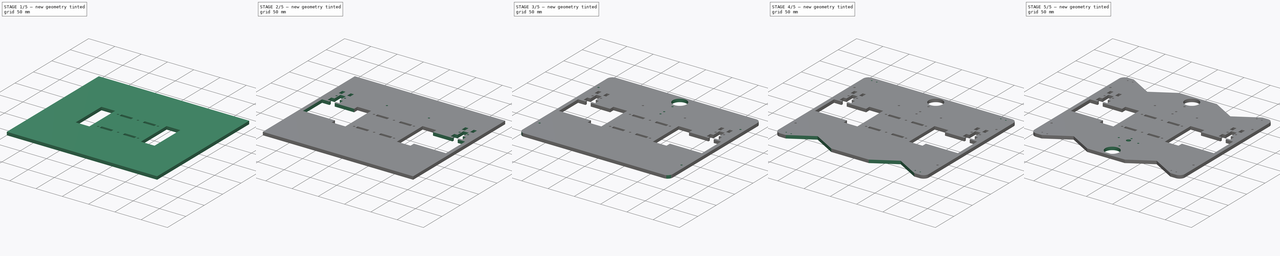
[diagram: build sequence overview — one tinted view per stage of 5, left to right]
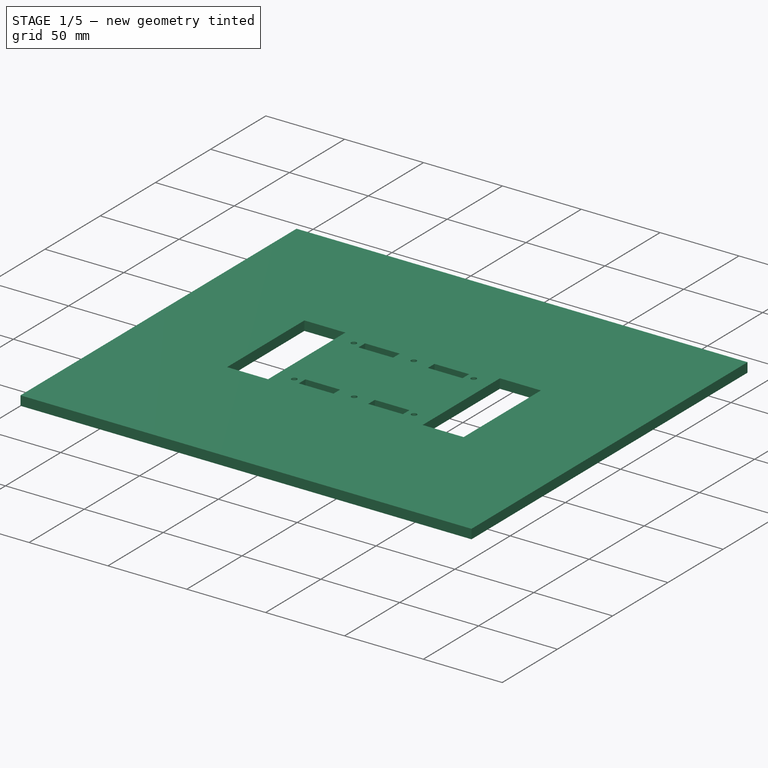
[diagram: stage 1 of 5 — iso view after this stage's code; geometry added in this stage tinted green]
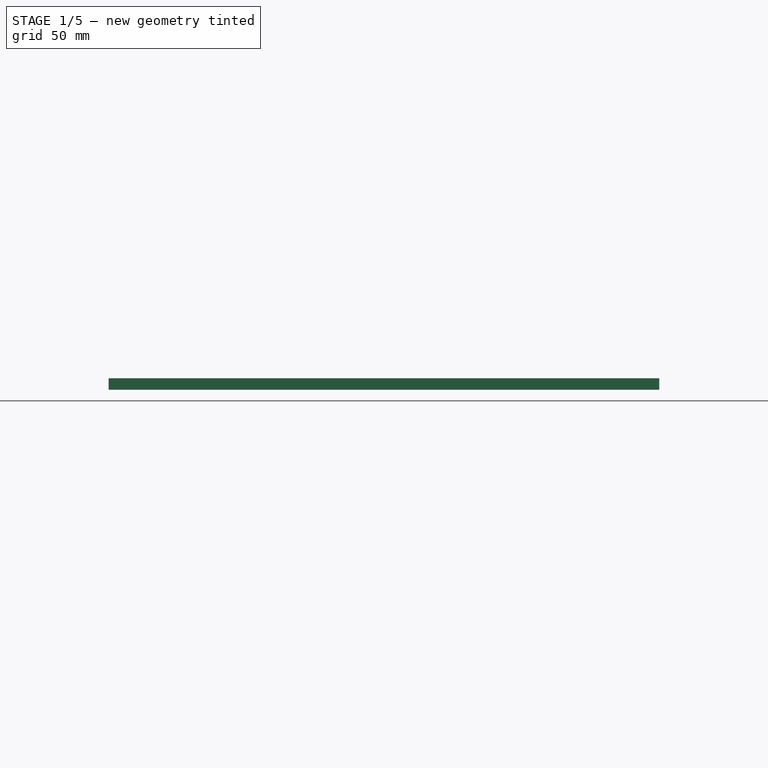
[diagram: stage 1 of 5 — front view after this stage's code; geometry added in this stage tinted green]
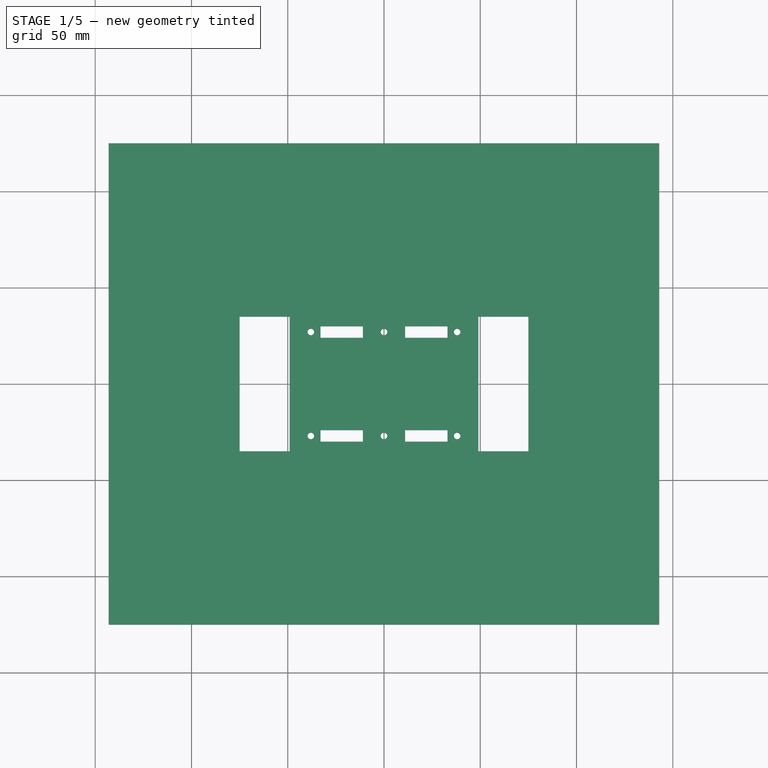
[diagram: stage 1 of 5 — top view after this stage's code; geometry added in this stage tinted green]
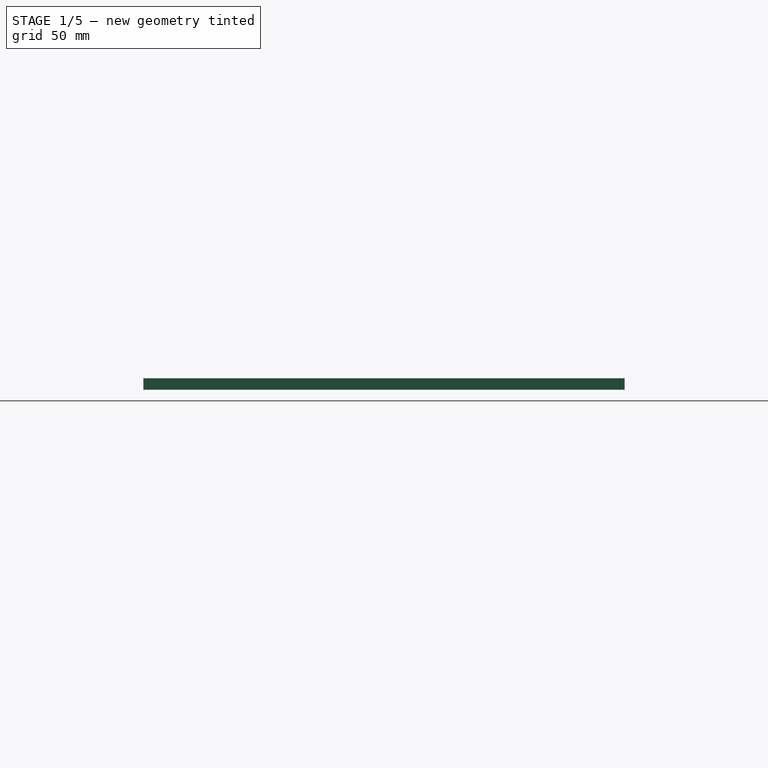
[diagram: stage 1 of 5 — right view after this stage's code; geometry added in this stage tinted green]
FCSTD DOCUMENT  (FreeCAD 0.19R24291 (Git))
Label: Chassis
License: All rights reserved
LicenseURL: http://en.wikipedia.org/wiki/All_rights_reserved
objects: Sketcher::SketchObject×10, PartDesign::Pocket×8, PartDesign::Mirrored×6, PartDesign::Pad×1, PartDesign::Hole×1, PartDesign::Body×1
note: 37 computed .brp shape members not serialized (recipe doc carries the construction recipe); baked Part::Feature solids carry a one-line shape summary decoded from their .brp

FEATURE [Sketcher::SketchObject] Sketch  label="sk1"
  FullyConstrained = true
  MapMode = 5
  Support = -> [XY_Plane]
  sketch-geometry (6):
    g0: LineSegment StartX=-143 StartY=-125 StartZ=0 EndX=143 EndY=-125 EndZ=0
    g1: LineSegment StartX=143 StartY=-125 StartZ=0 EndX=143 EndY=125 EndZ=0
    g2: LineSegment StartX=143 StartY=125 StartZ=0 EndX=-143 EndY=125 EndZ=0
    g3: LineSegment StartX=-143 StartY=125 StartZ=0 EndX=-143 EndY=-125 EndZ=0
    g4: LineSegment StartX=-143 StartY=125 StartZ=0 EndX=143 EndY=-125 EndZ=0
    g5: LineSegment StartX=143 StartY=125 StartZ=0 EndX=-143 EndY=-125 EndZ=0
  constraints (16):
    c: Coincident(g0,g1)
    c: Coincident(g1,g2)
    c: Coincident(g2,g3)
    c: Coincident(g3,g0)
    c: Horizontal(g0)
    c: Horizontal(g2)
    c: Vertical(g1)
    c: Vertical(g3)
    c: Coincident(g4,g2)
    c: Coincident(g4,g0)
    c: Coincident(g5,g1)
    c: Coincident(g5,g0)
    c: PointOnObject(g-1,g5)
    c: PointOnObject(g-1,g4)
    c: DistanceY(g3,g3) = 250
    c: DistanceX(g2,g2) = 286
FEATURE [PartDesign::Pad] Pad  label="Rectangle"
  Direction = (1,1,1)
  Length = 6
  Length2 = 100
  Profile = -> Sketch
  Type = 0
FEATURE [Sketcher::SketchObject] Sketch001  label="sk2"
  FullyConstrained = true
  MapMode = 5
  Placement = pos=(0,0,6) rot=(0,0,1;0rad)
  Support = -> [Pad]
  sketch-geometry (20):
    g0: LineSegment StartX=-33 StartY=24 StartZ=0 EndX=-11 EndY=24 EndZ=0
    g1: LineSegment StartX=-11 StartY=24 StartZ=0 EndX=-11 EndY=30 EndZ=0
    g2: LineSegment StartX=-11 StartY=30 StartZ=0 EndX=-33 EndY=30 EndZ=0
    g3: LineSegment StartX=-33 StartY=30 StartZ=0 EndX=-33 EndY=24 EndZ=0
    g4: LineSegment StartX=11 StartY=30 StartZ=0 EndX=33 EndY=30 EndZ=0
    g5: LineSegment StartX=11 StartY=24 StartZ=0 EndX=11 EndY=30 EndZ=0
    g6: LineSegment StartX=33 StartY=24 StartZ=0 EndX=11 EndY=24 EndZ=0
    g7: LineSegment StartX=33 StartY=30 StartZ=0 EndX=33 EndY=24 EndZ=0
    g8: LineSegment StartX=-49 StartY=35 StartZ=0 EndX=-75 EndY=35 EndZ=0
    g9: LineSegment StartX=-75 StartY=35 StartZ=0 EndX=-75 EndY=0 EndZ=0
    g10: LineSegment StartX=-49 StartY=35 StartZ=0 EndX=-49 EndY=0 EndZ=0
    g11: LineSegment StartX=-75 StartY=0 StartZ=0 EndX=-49 EndY=0 EndZ=0
    g12: LineSegment StartX=49 StartY=35 StartZ=0 EndX=49 EndY=-4.26e-14 EndZ=0
    g13: LineSegment StartX=49 StartY=35 StartZ=0 EndX=75 EndY=35 EndZ=0
    g14: LineSegment StartX=75 StartY=35 StartZ=0 EndX=75 EndY=-2.558e-13 EndZ=0
    g15: LineSegment StartX=75 StartY=-2.593e-13 StartZ=0 EndX=49 EndY=-4.26e-14 EndZ=0
    g16: LineSegment StartX=-38 StartY=27 StartZ=0 EndX=38 EndY=27 EndZ=0
    g17: Circle CenterX=-38 CenterY=27 CenterZ=0 NormalX=0 NormalY=0 NormalZ=1 AngleXU=0 Radius=1.7
    g18: Circle CenterX=0 CenterY=27 CenterZ=0 NormalX=0 NormalY=0 NormalZ=1 AngleXU=0 Radius=1.7
    g19: Circle CenterX=38 CenterY=27 CenterZ=0 NormalX=0 NormalY=0 NormalZ=1 AngleXU=0 Radius=1.7
  constraints (57):
    c: Coincident(g0,g1)
    c: Coincident(g1,g2)
    c: Coincident(g2,g3)
    c: Coincident(g3,g0)
    c: Horizontal(g0)
    c: Horizontal(g2)
    c: Vertical(g1)
    c: Vertical(g3)
    c: DistanceY(g1,g1) = 6
    c: DistanceX(g2,g2) = 22
    c: DistanceX(g0,g-1) = 11
    c: Coincident(g6,g5)
    c: Coincident(g5,g4)
    c: Coincident(g4,g7)
    c: Coincident(g7,g6)
    c: Horizontal(g6)
    c: Horizontal(g4)
    c: Vertical(g5)
    c: Vertical(g7)
    c: Equal(g3,g5)
    c: Equal(g4,g2)
    c: DistanceX(g-1,g4) = 11
    c: DistanceY(g-1,g5) = 24
    c: DistanceY(g-1,g0) = 24
    c: Horizontal(g8)
    c: Coincident(g9,g8)
    c: PointOnObject(g9,g-1)
    c: Vertical(g9)
    c: Coincident(g10,g8)
    c: PointOnObject(g10,g-1)
    c: Vertical(g10)
    c: Coincident(g11,g9)
    c: Coincident(g11,g10)
    c: DistanceX(g10,g-1) = 49
    c: DistanceX(g8,g8) = 26
    c: DistanceY(g9,g9) = 35
    c: Horizontal(g13)
    c: Coincident(g14,g13)
    c: Vertical(g14)
    c: Coincident(g12,g13)
    c: Vertical(g12)
    c: Coincident(g15,g14)
    c: Coincident(g15,g12)
    c: Equal(g12,g10)
    c: Equal(g13,g8)
    c: DistanceX(g-1,g12) = 49
    c: Tangent(g15,g-1)
    c: Symmetric(g0,g2,g16)
    c: DistanceX(g16,g0) = 5
    c: DistanceX(g6,g16) = 5
    c: Coincident(g17,g16)
    c: PointOnObject(g18,g16)
    c: Coincident(g19,g16)
    c: Radius(g18) = 1.7
    c: PointOnObject(g18,g-2)
    c: Equal(g19,g18)
    c: Equal(g18,g17)
FEATURE [PartDesign::Pocket] Pocket  label="Bloc_Moteurs_Half"
  BaseFeature = -> Pad
  Length = 5
  Length2 = 100
  Profile = -> Sketch001
  Type = 1
FEATURE [PartDesign::Mirrored] Mirrored  label="Bloc_Moteurs_Full"
  BaseFeature = -> Pocket
  MirrorPlane = -> Sketch001 [H_Axis]
  Originals = -> [Pocket]
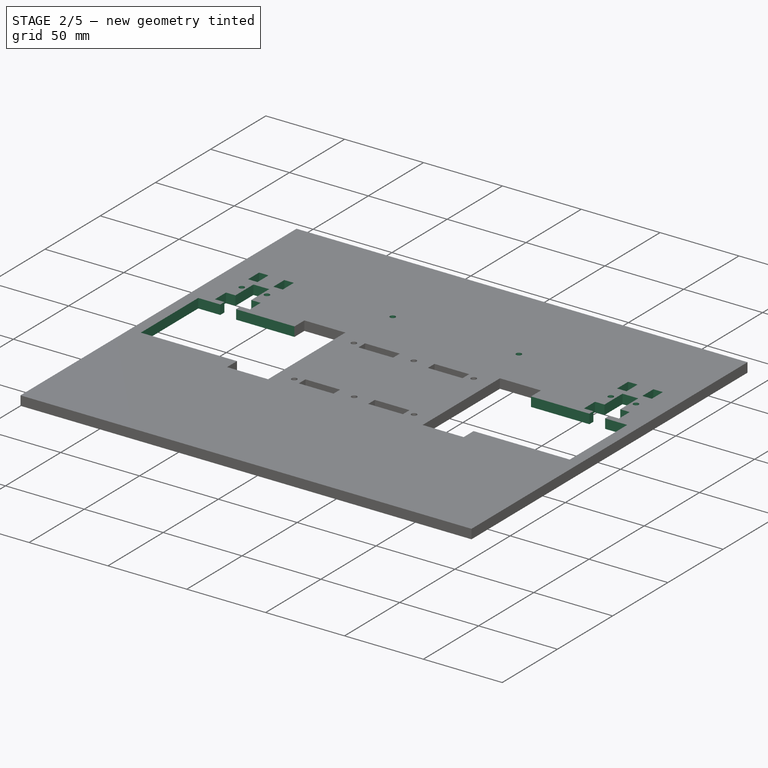
[diagram: stage 2 of 5 — iso view after this stage's code; geometry added in this stage tinted green]
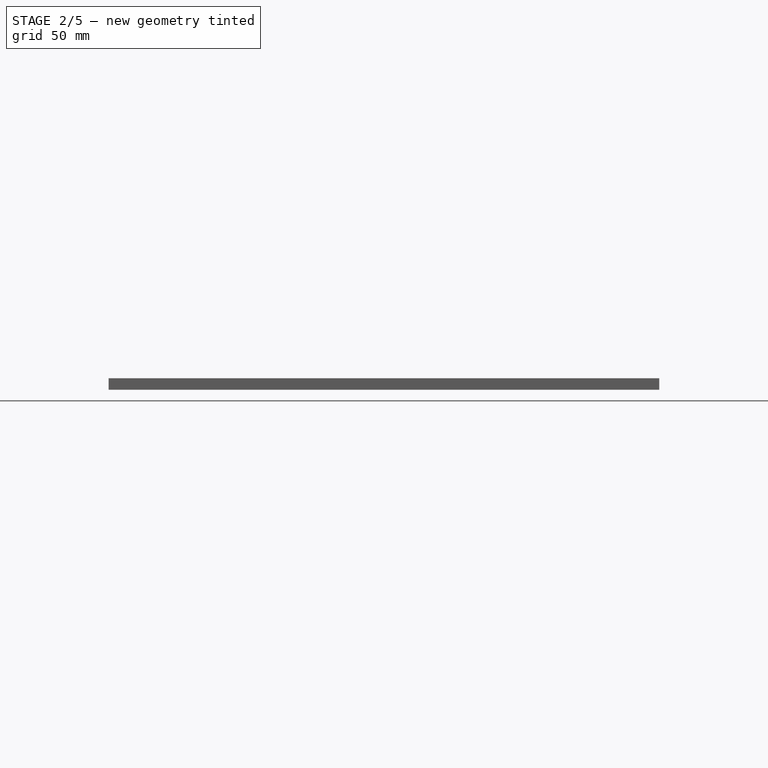
[diagram: stage 2 of 5 — front view after this stage's code; geometry added in this stage tinted green]
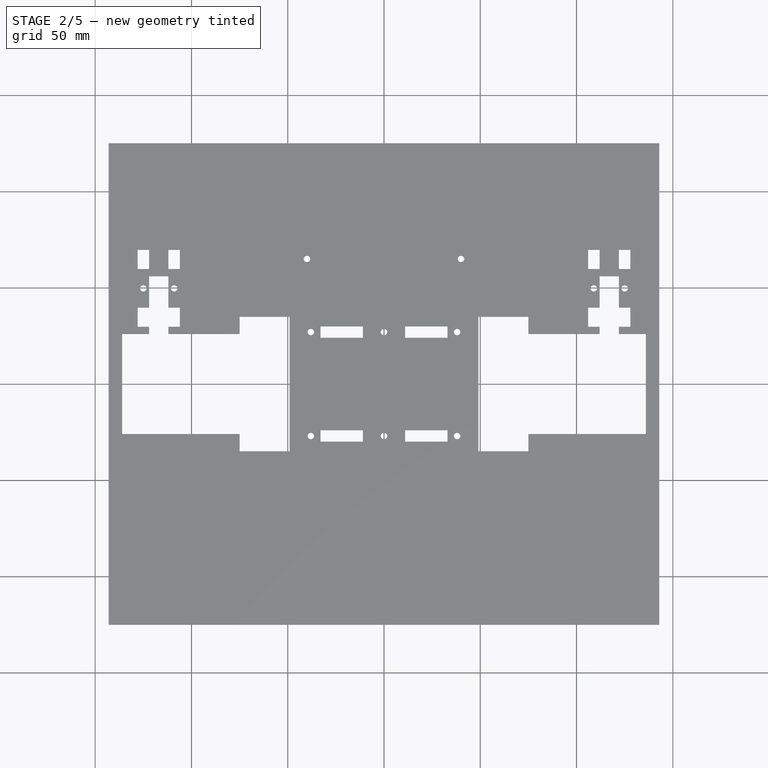
[diagram: stage 2 of 5 — top view after this stage's code; geometry added in this stage tinted green]
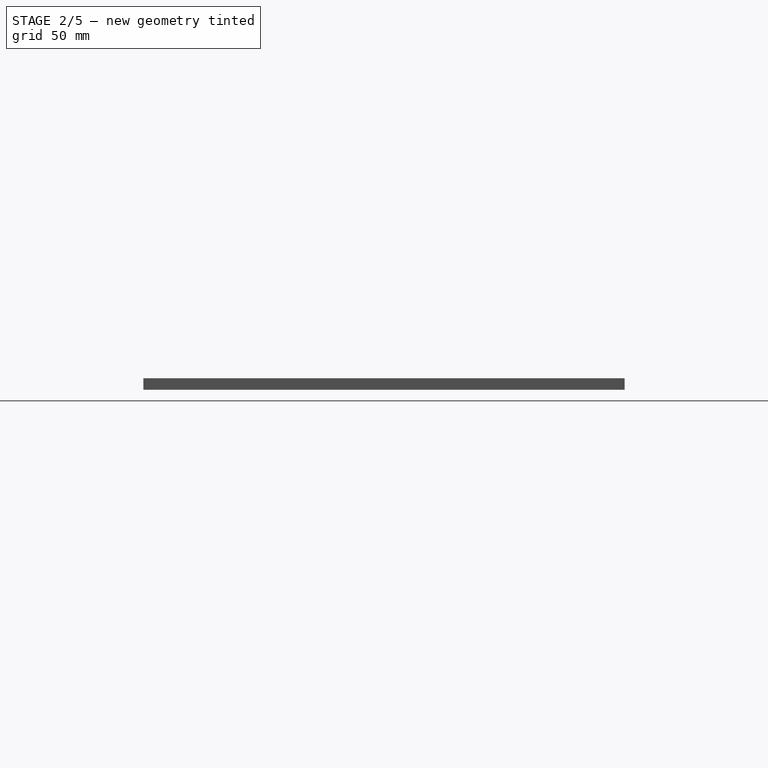
[diagram: stage 2 of 5 — right view after this stage's code; geometry added in this stage tinted green]
FEATURE [Sketcher::SketchObject] Sketch002  label="sk3"
  ExternalGeometry = -> [Mirrored]
  FullyConstrained = true
  MapMode = 5
  Placement = pos=(0,0,6) rot=(0,0,1;0rad)
  Support = -> [Mirrored]
  sketch-geometry (43):
    g0: LineSegment StartX=-136 StartY=26 StartZ=0 EndX=-136 EndY=-26 EndZ=0
    g1: LineSegment StartX=-136 StartY=-26 StartZ=0 EndX=-75 EndY=-26 EndZ=0
    g2: LineSegment StartX=-136 StartY=26 StartZ=0 EndX=-75 EndY=26 EndZ=0
    g3: LineSegment StartX=-122 StartY=26 StartZ=0 EndX=-112 EndY=26 EndZ=0
    g4: LineSegment StartX=-112 StartY=26 StartZ=0 EndX=-112 EndY=56 EndZ=0
    g5: LineSegment StartX=-112 StartY=56 StartZ=0 EndX=-122 EndY=56 EndZ=0
    g6: LineSegment StartX=-122 StartY=56 StartZ=0 EndX=-122 EndY=26 EndZ=0
    g7: LineSegment StartX=-122 StartY=29.7 StartZ=0 EndX=-128 EndY=29.7 EndZ=0
    g8: LineSegment StartX=-128 StartY=29.7 StartZ=0 EndX=-128 EndY=39.7 EndZ=0
    g9: LineSegment StartX=-128 StartY=39.7 StartZ=0 EndX=-122 EndY=39.7 EndZ=0
    g10: LineSegment StartX=-122 StartY=39.7 StartZ=0 EndX=-122 EndY=29.7 EndZ=0
    g11: LineSegment StartX=-112 StartY=39.7 StartZ=0 EndX=-106 EndY=39.7 EndZ=0
    g12: LineSegment StartX=-106 StartY=39.7 StartZ=0 EndX=-106 EndY=29.7 EndZ=0
    g13: LineSegment StartX=-106 StartY=29.7 StartZ=0 EndX=-112 EndY=29.7 EndZ=0
    g14: LineSegment StartX=-112 StartY=29.7 StartZ=0 EndX=-112 EndY=39.7 EndZ=0
    g15: LineSegment StartX=-128 StartY=59.7 StartZ=0 EndX=-122 EndY=59.7 EndZ=0
    g16: LineSegment StartX=-122 StartY=59.7 StartZ=0 EndX=-122 EndY=69.7 EndZ=0
    g17: LineSegment StartX=-122 StartY=69.7 StartZ=0 EndX=-128 EndY=69.7 EndZ=0
    g18: LineSegment StartX=-128 StartY=69.7 StartZ=0 EndX=-128 EndY=59.7 EndZ=0
    g19: LineSegment StartX=-112 StartY=59.7 StartZ=0 EndX=-106 EndY=59.7 EndZ=0
    g20: LineSegment StartX=-106 StartY=59.7 StartZ=0 EndX=-106 EndY=69.7 EndZ=0
    g21: LineSegment StartX=-106 StartY=69.7 StartZ=0 EndX=-112 EndY=69.7 EndZ=0
    g22: LineSegment StartX=-112 StartY=69.7 StartZ=0 EndX=-112 EndY=59.7 EndZ=0
    g23: Circle CenterX=-125 CenterY=49.7 CenterZ=0 NormalX=0 NormalY=0 NormalZ=1 AngleXU=0 Radius=1.7
    g24: LineSegment StartX=-128 StartY=59.7 StartZ=0 EndX=-122 EndY=39.7 EndZ=0
    g25: LineSegment StartX=-128 StartY=39.7 StartZ=0 EndX=-122 EndY=59.7 EndZ=0
    g26: Circle CenterX=-109 CenterY=49.7 CenterZ=0 NormalX=0 NormalY=0 NormalZ=1 AngleXU=0 Radius=1.7
    g27: LineSegment StartX=-112 StartY=59.7 StartZ=0 EndX=-106 EndY=39.7 EndZ=0
    g28: LineSegment StartX=-112 StartY=39.7 StartZ=0 EndX=-106 EndY=59.7 EndZ=0
    g29: LineSegment StartX=-136 StartY=26 StartZ=0 EndX=-122 EndY=26 EndZ=0
    g30: LineSegment StartX=-122 StartY=29.7 StartZ=0 EndX=-122 EndY=26 EndZ=0
    g31: LineSegment StartX=-122 StartY=29.7 StartZ=0 EndX=-128 EndY=29.7 EndZ=0
    g32: LineSegment StartX=-128 StartY=39.7 StartZ=0 EndX=-128 EndY=29.7 EndZ=0
    g33: LineSegment StartX=-128 StartY=39.7 StartZ=0 EndX=-122 EndY=39.7 EndZ=0
    g34: LineSegment StartX=-122 StartY=56 StartZ=0 EndX=-122 EndY=39.7 EndZ=0
    g35: LineSegment StartX=-122 StartY=56 StartZ=0 EndX=-112 EndY=56 EndZ=0
    g36: LineSegment StartX=-112 StartY=56 StartZ=0 EndX=-112 EndY=39.7 EndZ=0
    g37: LineSegment StartX=-112 StartY=39.7 StartZ=0 EndX=-106 EndY=39.7 EndZ=0
    g38: LineSegment StartX=-106 StartY=39.7 StartZ=0 EndX=-106 EndY=29.7 EndZ=0
    g39: LineSegment StartX=-106 StartY=29.7 StartZ=0 EndX=-112 EndY=29.7 EndZ=0
    g40: LineSegment StartX=-112 StartY=29.7 StartZ=0 EndX=-112 EndY=26 EndZ=0
    g41: LineSegment StartX=-112 StartY=26 StartZ=0 EndX=-75 EndY=26 EndZ=0
    g42: LineSegment StartX=-75 StartY=26 StartZ=0 EndX=-75 EndY=-26 EndZ=0
  constraints (111):
    c: Coincident(g2,g0)
    c: Horizontal(g2)
    c: DistanceX(g0,g1) = 61
    c: Coincident(g3,g4)
    c: Coincident(g4,g5)
    c: Coincident(g5,g6)
    c: Coincident(g6,g3)
    c: Horizontal(g3)
    c: Horizontal(g5)
    c: Vertical(g4)
    c: Vertical(g6)
    c: PointOnObject(g3,g2)
    c: DistanceX(g5,g5) = 10
    c: DistanceY(g6,g6) = 30
    c: Coincident(g7,g8)
    c: Coincident(g8,g9)
    c: Coincident(g9,g10)
    c: Coincident(g10,g7)
    c: Horizontal(g7)
    c: Horizontal(g9)
    c: Vertical(g8)
    c: Vertical(g10)
    c: PointOnObject(g7,g6)
    c: DistanceX(g9,g9) = 6
    c: Equal(g8,g5)
    c: Coincident(g11,g12)
    c: Coincident(g12,g13)
    c: Coincident(g13,g14)
    c: Coincident(g14,g11)
    c: Horizontal(g11)
    c: Horizontal(g13)
    c: Vertical(g12)
    c: Vertical(g14)
    c: PointOnObject(g11,g4)
    c: Equal(g11,g9)
    c: Horizontal(g13,g7)
    c: Horizontal(g11,g9)
    c: DistanceX(g3,g2) = 37
    c: Coincident(g15,g16)
    c: Coincident(g16,g17)
    c: Coincident(g17,g18)
    c: Coincident(g18,g15)
    c: Horizontal(g15)
    c: Horizontal(g17)
    c: Vertical(g16)
    c: Vertical(g18)
    c: Equal(g15,g9)
    c: Equal(g16,g8)
    c: Vertical(g15,g8)
    c: DistanceY(g8,g15) = 20
    c: Coincident(g19,g20)
    c: Coincident(g20,g21)
    c: Coincident(g21,g22)
    c: Coincident(g22,g19)
    c: Horizontal(g19)
    c: Horizontal(g21)
    c: Vertical(g20)
    c: Vertical(g22)
    c: Equal(g21,g17)
    c: Horizontal(g21,g16)
    c: Equal(g22,g16)
    c: Vertical(g19,g11)
    c: Radius(g23) = 1.7
    c: Coincident(g24,g15)
    c: Coincident(g24,g9)
    c: Coincident(g25,g8)
    c: Coincident(g25,g15)
    c: PointOnObject(g23,g24)
    c: PointOnObject(g23,g25)
    c: Equal(g26,g23)
    c: Coincident(g27,g19)
    c: Coincident(g27,g11)
    c: Coincident(g28,g11)
    c: Coincident(g28,g19)
    c: PointOnObject(g26,g28)
    c: PointOnObject(g26,g27)
    c: Coincident(g29,g0)
    c: Coincident(g29,g3)
    c: Coincident(g30,g7)
    c: Coincident(g30,g29)
    c: Coincident(g31,g30)
    c: Coincident(g31,g7)
    c: Coincident(g32,g8)
    c: Coincident(g32,g31)
    c: Coincident(g33,g32)
    c: Coincident(g33,g9)
    c: Coincident(g34,g5)
    c: Coincident(g34,g33)
    c: Coincident(g35,g34)
    c: Coincident(g35,g4)
    c: Coincident(g36,g35)
    c: Coincident(g36,g11)
    c: Coincident(g37,g36)
    c: Coincident(g37,g11)
    c: Coincident(g38,g37)
    c: Coincident(g38,g12)
    c: Coincident(g39,g38)
    c: Coincident(g39,g13)
    c: Coincident(g40,g39)
    c: Coincident(g40,g3)
    c: Coincident(g41,g40)
    c: Coincident(g41,g2)
    c: Coincident(g42,g41)
    c: Coincident(g42,g1)
    c: Symmetric(g0,g0,g-1)
    c: Coincident(g1,g0)
    c: PointOnObject(g1,g-5)
    c: Horizontal(g1)
    c: DistanceY(g0,g0) = 52
    c: PointOnObject(g41,g-4)
    c: DistanceY(g-5,g31) = 29.7
FEATURE [PartDesign::Pocket] Pocket001  label="Bloc_Codeurs_Half"
  BaseFeature = -> Mirrored
  Length = 5
  Length2 = 100
  Profile = -> Sketch002
  Type = 1
FEATURE [PartDesign::Mirrored] Mirrored001  label="Bloc_Codeurs_Full"
  BaseFeature = -> Pocket001
  MirrorPlane = -> Sketch002 [V_Axis]
  Originals = -> [Pocket001]
FEATURE [Sketcher::SketchObject] Sketch003  label="sk4"
  FullyConstrained = true
  MapMode = 5
  Placement = pos=(0,0,6) rot=(0,0,1;0rad)
  Support = -> [Mirrored001]
  sketch-geometry (2):
    g0: Circle CenterX=-40 CenterY=65 CenterZ=0 NormalX=0 NormalY=0 NormalZ=1 AngleXU=0 Radius=1.7
    g1: Circle CenterX=40 CenterY=65 CenterZ=0 NormalX=0 NormalY=0 NormalZ=1 AngleXU=0 Radius=1.7
  constraints (6):
    c: Radius(g0) = 1.7
    c: DistanceX(g0,g-1) = 40
    c: Radius(g1) = 1.7
    c: Horizontal(g1,g0)
    c: DistanceX(g-1,g1) = 40
    c: DistanceY(g-1,g0) = 65
FEATURE [PartDesign::Pocket] Pocket002  label="Support_Bat_Half"
  BaseFeature = -> Mirrored001
  Length = 5
  Length2 = 100
  Profile = -> Sketch003
  Type = 1
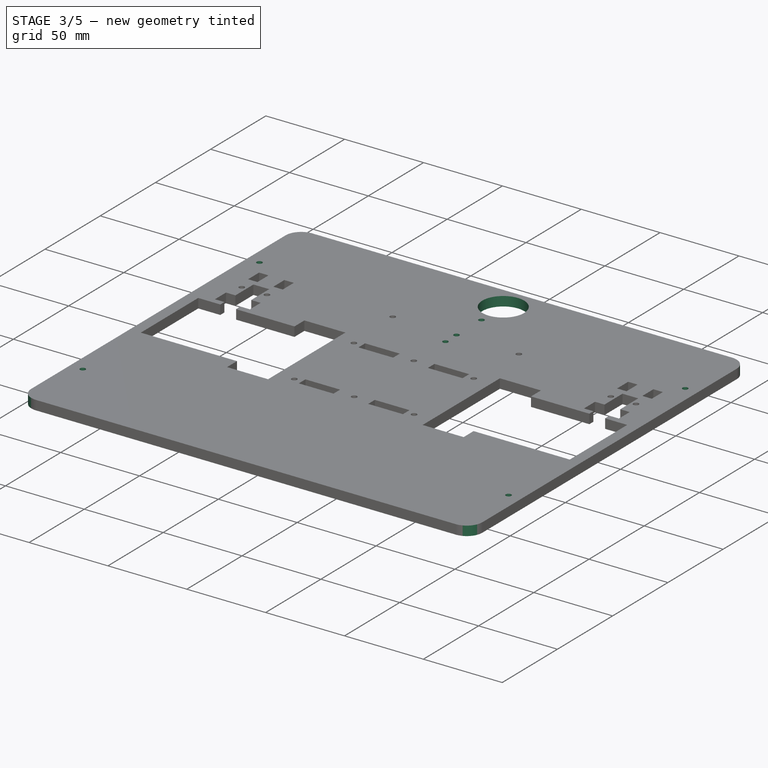
[diagram: stage 3 of 5 — iso view after this stage's code; geometry added in this stage tinted green]
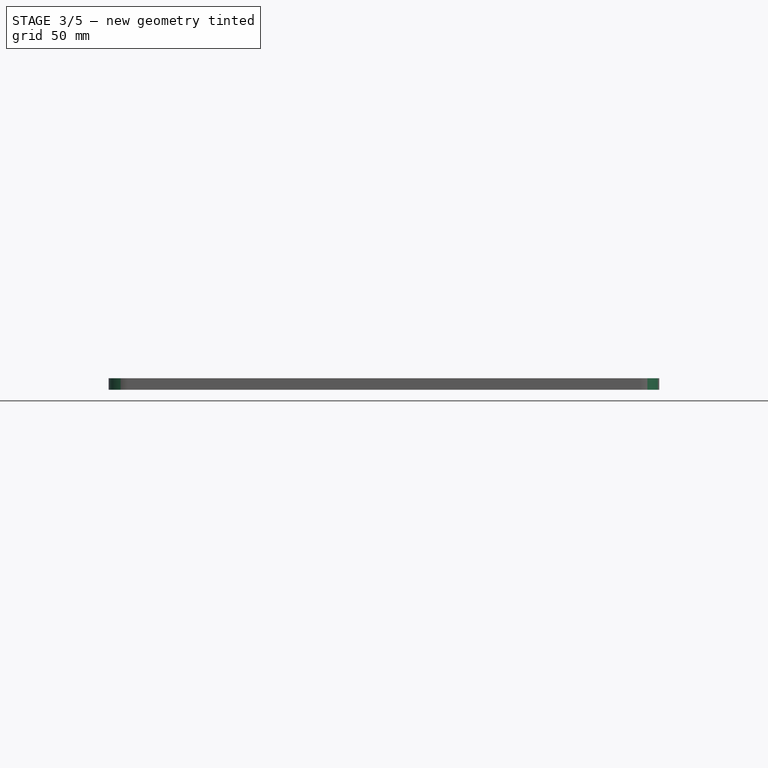
[diagram: stage 3 of 5 — front view after this stage's code; geometry added in this stage tinted green]
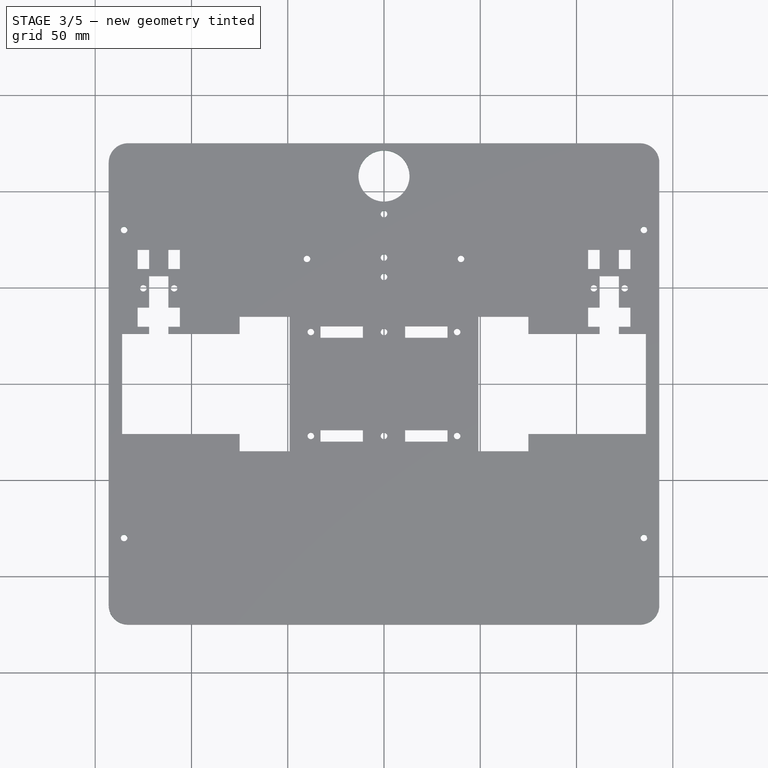
[diagram: stage 3 of 5 — top view after this stage's code; geometry added in this stage tinted green]
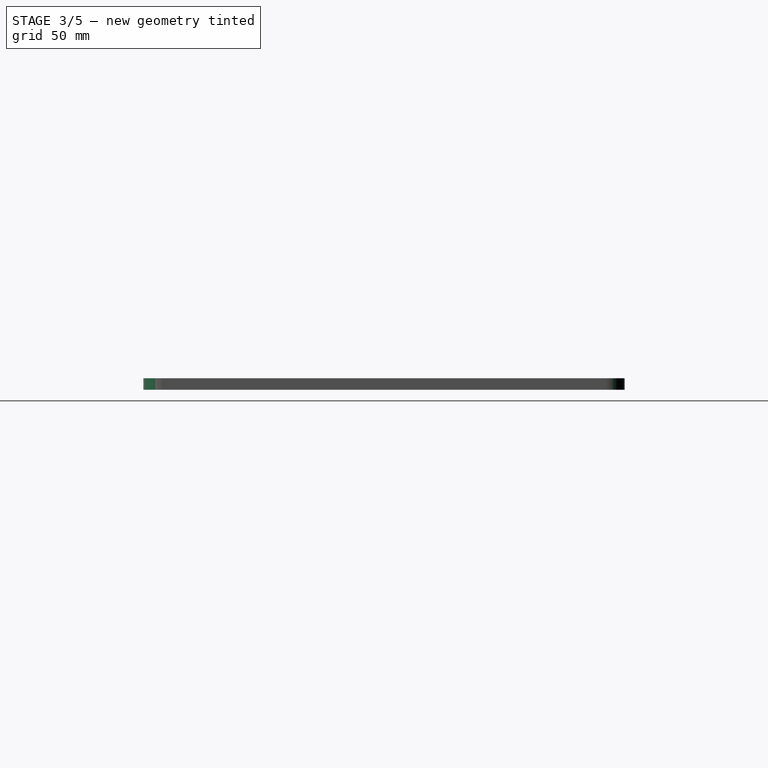
[diagram: stage 3 of 5 — right view after this stage's code; geometry added in this stage tinted green]
FEATURE [Sketcher::SketchObject] Sketch004  label="Sketch"
  FullyConstrained = true
  MapMode = 5
  Placement = pos=(0,0,6) rot=(0,0,1;0rad)
  sketch-geometry (4):
    g0: Circle CenterX=0 CenterY=108 CenterZ=0 NormalX=0 NormalY=0 NormalZ=1 AngleXU=0 Radius=13.25
    g1: Circle CenterX=0 CenterY=88.25 CenterZ=0 NormalX=0 NormalY=0 NormalZ=1 AngleXU=0 Radius=1.7
    g2: Circle CenterX=0 CenterY=55.65 CenterZ=0 NormalX=0 NormalY=0 NormalZ=1 AngleXU=0 Radius=1.7
    g3: Circle CenterX=0 CenterY=65.65 CenterZ=0 NormalX=0 NormalY=0 NormalZ=1 AngleXU=0 Radius=1.7
  constraints (12):
    c: PointOnObject(g0,g-2)
    c: Radius(g0) = 13.25
    c: PointOnObject(g1,g-2)
    c: Radius(g1) = 1.7
    c: PointOnObject(g2,g-2)
    c: PointOnObject(g3,g-2)
    c: Equal(g3,g2)
    c: Equal(g2,g1)
    c: DistanceY(g2,g3) = 10
    c: DistanceY(g-1,g0) = 108
    c: DistanceY(g1,g0) = 19.75
    c: DistanceY(g3,g1) = 22.6
FEATURE [PartDesign::Pocket] Pocket003  label="Support_Bille_Half"
  BaseFeature = -> Pocket002
  Length = 5
  Length2 = 100
  Profile = -> Sketch004
  Type = 1
FEATURE [Sketcher::SketchObject] Sketch005  label="sk6"
  FullyConstrained = false
  MapMode = 5
  Placement = pos=(0,0,6) rot=(0,0,1;0rad)
  sketch-geometry (15):
    g0: LineSegment StartX=-135 StartY=-80 StartZ=0 EndX=135 EndY=-80 EndZ=0
    g1: LineSegment StartX=135 StartY=-80 StartZ=0 EndX=135 EndY=80 EndZ=0
    g2: LineSegment StartX=135 StartY=80 StartZ=0 EndX=-135 EndY=80 EndZ=0
    g3: LineSegment StartX=-135 StartY=80 StartZ=0 EndX=-135 EndY=-80 EndZ=0
    g4: LineSegment StartX=-135 StartY=-80 StartZ=0 EndX=135 EndY=80 EndZ=0
    g5: LineSegment StartX=-135 StartY=80 StartZ=0 EndX=135 EndY=-80 EndZ=0
    g6: Circle CenterX=135 CenterY=80 CenterZ=0 NormalX=0 NormalY=0 NormalZ=1 AngleXU=0 Radius=1.7
    g7: Circle CenterX=-135 CenterY=80 CenterZ=0 NormalX=0 NormalY=0 NormalZ=1 AngleXU=0 Radius=1.7
    g8: Circle CenterX=-135 CenterY=-80 CenterZ=0 NormalX=0 NormalY=0 NormalZ=1 AngleXU=0 Radius=1.7
    g9: Circle CenterX=135 CenterY=-80 CenterZ=0 NormalX=0 NormalY=0 NormalZ=1 AngleXU=0 Radius=1.7
    g10: LineSegment StartX=-130 StartY=-85 StartZ=0 EndX=-140 EndY=-85 EndZ=0
    g11: LineSegment StartX=-140 StartY=-85 StartZ=0 EndX=-140 EndY=-75 EndZ=0
    g12: LineSegment StartX=-140 StartY=-75 StartZ=0 EndX=-130 EndY=-75 EndZ=0
    g13: LineSegment StartX=-130 StartY=-75 StartZ=0 EndX=-130 EndY=-85 EndZ=0
    g14: LineSegment StartX=-140 StartY=-75 StartZ=0 EndX=-130 EndY=-85 EndZ=0
  constraints (36):
    c: Coincident(g0,g1)
    c: Coincident(g1,g2)
    c: Coincident(g2,g3)
    c: Coincident(g3,g0)
    c: Horizontal(g0)
    c: Horizontal(g2)
    c: Vertical(g1)
    c: Vertical(g3)
    c: Coincident(g4,g0)
    c: Coincident(g4,g1)
    c: Coincident(g5,g2)
    c: Coincident(g5,g0)
    c: PointOnObject(g-1,g5)
    c: PointOnObject(g-1,g4)
    c: DistanceY(g1,g1) = 160
    c: Coincident(g6,g1)
    c: Coincident(g7,g2)
    c: Coincident(g8,g0)
    c: Coincident(g9,g0)
    c: Radius(g6) = 1.7
    c: Equal(g6,g7)
    c: Equal(g7,g8)
    c: Equal(g8,g9)
    c: Coincident(g10,g11)
    c: Coincident(g11,g12)
    c: Coincident(g12,g13)
    c: Coincident(g13,g10)
    c: Horizontal(g10)
    c: Horizontal(g12)
    c: Vertical(g11)
    c: Vertical(g13)
    c: Coincident(g14,g11)
    c: Coincident(g14,g10)
    c: DistanceX(g10,g10) = 10
    c: Equal(g10,g13)
    c: Symmetric(g11,g10,g8)
FEATURE [PartDesign::Pocket] Pocket004  label="Fixation_Structure"
  BaseFeature = -> Pocket003
  Length = 5
  Length2 = 100
  Profile = -> Sketch005
  Type = 1
FEATURE [Sketcher::SketchObject] Sketch006  label="sk7"
  ExternalGeometry = -> [Pocket004]
  FullyConstrained = true
  MapMode = 5
  Placement = pos=(0,0,6) rot=(0,0,1;0rad)
  Support = -> [Pocket004]
  sketch-geometry (10):
    g0: LineSegment StartX=-143 StartY=-115 StartZ=0 EndX=-143 EndY=-125 EndZ=0
    g1: LineSegment StartX=-143 StartY=-125 StartZ=0 EndX=-133 EndY=-125 EndZ=0
    g2: LineSegment StartX=143 StartY=-115 StartZ=0 EndX=143 EndY=-125 EndZ=0
    g3: LineSegment StartX=143 StartY=-125 StartZ=0 EndX=133 EndY=-125 EndZ=0
    g4: LineSegment StartX=-143 StartY=-115 StartZ=0 EndX=-133 EndY=-115 EndZ=0
    g5: LineSegment StartX=-133 StartY=-115 StartZ=0 EndX=-133 EndY=-125 EndZ=0
    g6: ArcOfCircle CenterX=-133 CenterY=-115 CenterZ=0 NormalX=0 NormalY=0 NormalZ=1 AngleXU=0 Radius=10 StartAngle=3.14159 EndAngle=4.71239
    g7: ArcOfCircle CenterX=133 CenterY=-115 CenterZ=0 NormalX=0 NormalY=0 NormalZ=1 AngleXU=0 Radius=10 StartAngle=4.71239 EndAngle=6.28319
    g8: LineSegment StartX=133 StartY=-115 StartZ=0 EndX=133 EndY=-125 EndZ=0
    g9: LineSegment StartX=133 StartY=-115 StartZ=0 EndX=143 EndY=-115 EndZ=0
  constraints (26):
    c: PointOnObject(g0,g-3)
    c: PointOnObject(g1,g-4)
    c: Coincident(g0,g-4)
    c: Coincident(g1,g0)
    c: Equal(g1,g0)
    c: Coincident(g3,g2)
    c: Equal(g3,g2)
    c: Equal(g3,g1)
    c: PointOnObject(g2,g-5)
    c: Coincident(g2,g-5)
    c: PointOnObject(g3,g-4)
    c: DistanceX(g0,g1) = 10
    c: Horizontal(g4)
    c: Coincident(g5,g4)
    c: Coincident(g4,g0)
    c: Coincident(g5,g1)
    c: Coincident(g6,g4)
    c: Coincident(g6,g0)
    c: Coincident(g6,g1)
    c: Coincident(g7,g2)
    c: Coincident(g7,g3)
    c: Coincident(g8,g7)
    c: Coincident(g8,g3)
    c: Vertical(g8)
    c: Coincident(g9,g7)
    c: Coincident(g9,g2)
FEATURE [PartDesign::Pocket] Pocket005  label="Coins_Arrondis"
  BaseFeature = -> Pocket004
  Length = 5
  Length2 = 100
  Profile = -> Sketch006
  Type = 1
FEATURE [PartDesign::Mirrored] Mirrored004  label="Coins_Arrondis_Full"
  BaseFeature = -> Pocket005
  MirrorPlane = -> Sketch006 [H_Axis]
  Originals = -> [Pocket005]
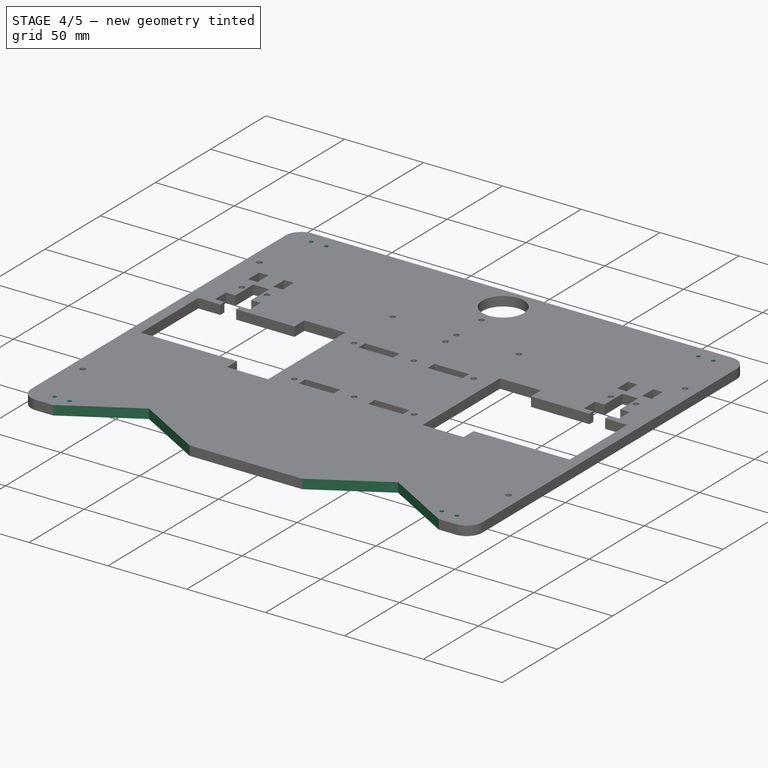
[diagram: stage 4 of 5 — iso view after this stage's code; geometry added in this stage tinted green]
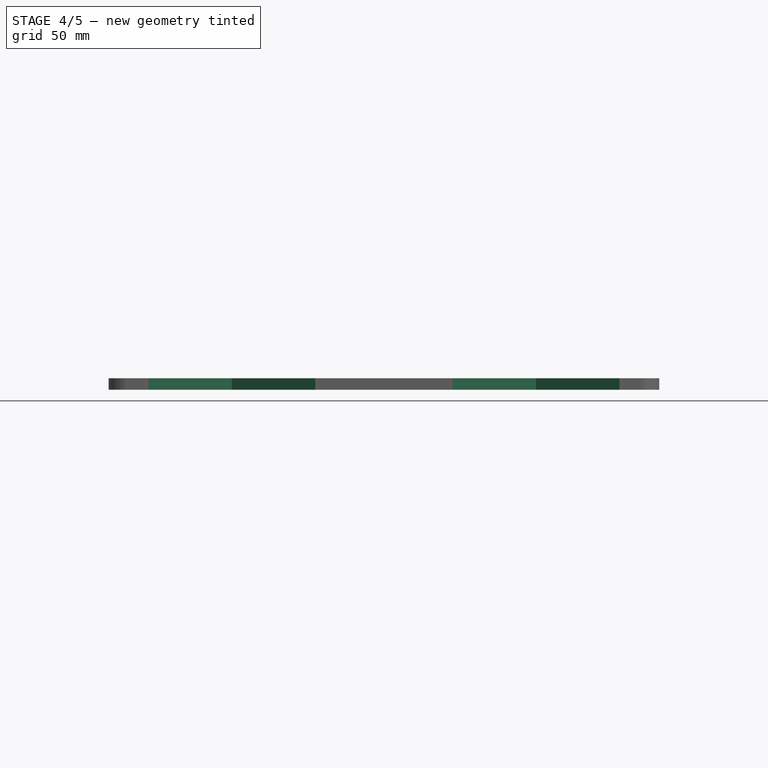
[diagram: stage 4 of 5 — front view after this stage's code; geometry added in this stage tinted green]
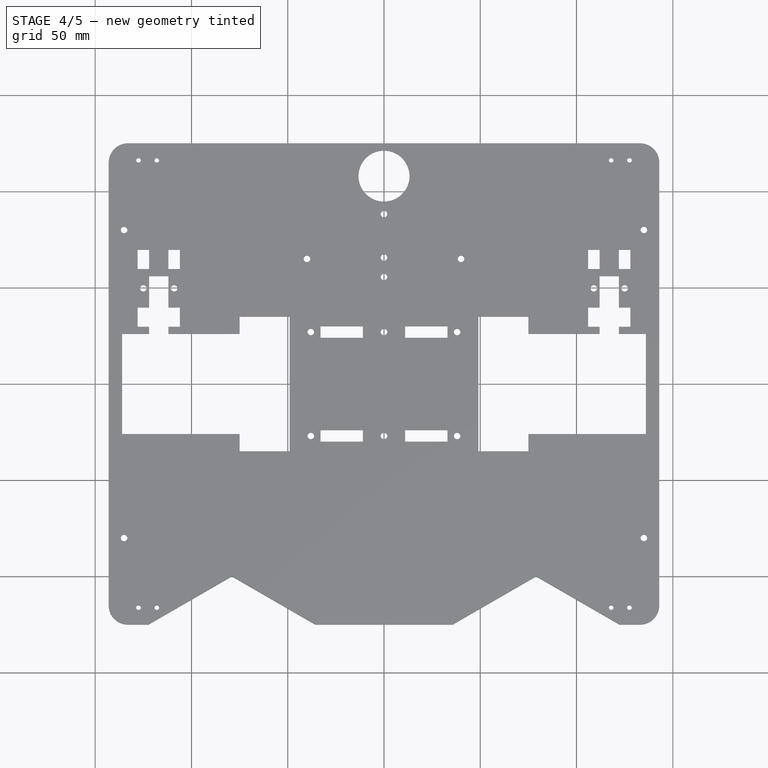
[diagram: stage 4 of 5 — top view after this stage's code; geometry added in this stage tinted green]
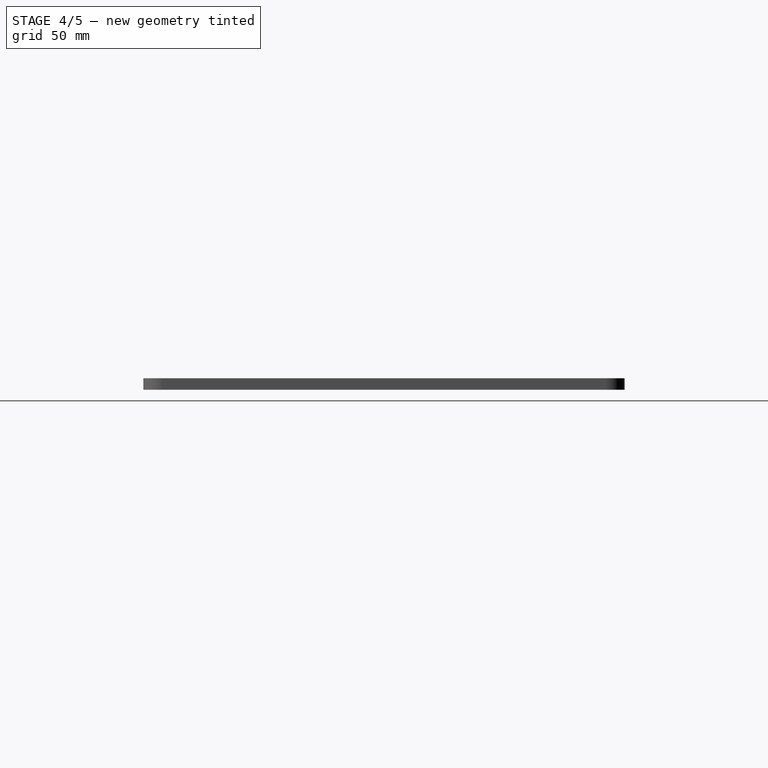
[diagram: stage 4 of 5 — right view after this stage's code; geometry added in this stage tinted green]
FEATURE [Sketcher::SketchObject] Sketch007  label="sk8"
  ExternalGeometry = -> [Mirrored004]
  FullyConstrained = true
  MapMode = 5
  Placement = pos=(0,0,6) rot=(0,0,1;0rad)
  Support = -> [Mirrored004]
  sketch-geometry (8):
    g0: Circle CenterX=-127.5 CenterY=-116.2 CenterZ=0 NormalX=0 NormalY=0 NormalZ=1 AngleXU=0 Radius=1
    g1: Circle CenterX=-118 CenterY=-116.2 CenterZ=0 NormalX=0 NormalY=0 NormalZ=1 AngleXU=0 Radius=1
    g2: GeomPoint X=-128.5 Y=-116.2 Z=0
    g3: GeomPoint X=-119 Y=-116.2 Z=0
    g4: Circle CenterX=127.5 CenterY=-116.2 CenterZ=0 NormalX=0 NormalY=0 NormalZ=1 AngleXU=0 Radius=1
    g5: Circle CenterX=118 CenterY=-116.2 CenterZ=0 NormalX=0 NormalY=0 NormalZ=1 AngleXU=0 Radius=1
    g6: LineSegment StartX=127.5 StartY=-116.2 StartZ=0 EndX=118 EndY=-116.2 EndZ=0
    g7: LineSegment StartX=-127.5 StartY=-116.2 StartZ=0 EndX=-118 EndY=-116.2 EndZ=0
  constraints (21):
    c: Radius(g0) = 1
    c: Equal(g0,g1)
    c: Horizontal(g0,g1)
    c: DistanceX(g0,g1) = 9.5
    c: DistanceY(g-3,g0) = 8.8
    c: PointOnObject(g2,g0)
    c: PointOnObject(g3,g1)
    c: Horizontal(g2,g0)
    c: Horizontal(g3,g1)
    c: Radius(g5) = 1
    c: Equal(g5,g4)
    c: Horizontal(g4,g5)
    c: Horizontal(g1,g4)
    c: DistanceY(g-4) = -115
    c: Coincident(g6,g4)
    c: Coincident(g6,g5)
    c: Coincident(g7,g0)
    c: Coincident(g7,g1)
    c: Equal(g6,g7)
    c: DistanceX(g-3,g1) = 15
    c: DistanceX(g5,g-3) = 15
FEATURE [PartDesign::Hole] Hole  label="Fixation_Microrupteurs_Half"
  BaseFeature = -> Mirrored004
  Depth = 25
  DepthType = 1
  Diameter = 2.42
  DrillForDepth = false
  DrillPoint = 1
  DrillPointAngle = 118
  HoleCutCountersinkAngle = 90
  HoleCutCustomValues = false
  HoleCutDepth = 0
  HoleCutDiameter = 6.1
  HoleCutType = 0
  ModelActualThread = false
  Profile = -> Sketch007
  Tapered = false
  TaperedAngle = 90
  ThreadAngle = 0
  ThreadClass = 0
  ThreadCutOffInner = 0
  ThreadCutOffOuter = 0
  ThreadDirection = 0
  ThreadFit = 0
  ThreadPitch = 0
  ThreadSize = 7
  ThreadType = 1
  Threaded = false
FEATURE [PartDesign::Mirrored] Mirrored005  label="Fixation_Microrupteurs_Full"
  BaseFeature = -> Hole
  MirrorPlane = -> Sketch007 [H_Axis]
  Originals = -> [Hole]
FEATURE [Sketcher::SketchObject] Sketch008  label="sk9"
  ExternalGeometry = -> [Mirrored005]
  FullyConstrained = true
  MapMode = 5
  Placement = pos=(0,0,6) rot=(0,0,1;0rad)
  Support = -> [Mirrored005]
  sketch-geometry (16):
    g0: LineSegment StartX=-4 StartY=-143.301 StartZ=0 EndX=-79 EndY=-100 EndZ=0
    g1: LineSegment StartX=-79 StartY=-100 StartZ=0 EndX=-154 EndY=-143.301 EndZ=0
    g2: LineSegment StartX=-154 StartY=-143.301 StartZ=0 EndX=-154 EndY=-229.904 EndZ=0
    g3: LineSegment StartX=-154 StartY=-229.904 StartZ=0 EndX=-79 EndY=-273.205 EndZ=0
    g4: LineSegment StartX=-79 StartY=-273.205 StartZ=0 EndX=-4 EndY=-229.904 EndZ=0
    g5: LineSegment StartX=-4 StartY=-229.904 StartZ=0 EndX=-4 EndY=-143.301 EndZ=0
    g6: Circle CenterX=-79 CenterY=-186.603 CenterZ=0 NormalX=0 NormalY=0 NormalZ=1 AngleXU=0 Radius=86.6025
    g7: LineSegment StartX=-154 StartY=-143.301 StartZ=0 EndX=-4 EndY=-143.301 EndZ=0
    g8: LineSegment StartX=4 StartY=-143.301 StartZ=0 EndX=4 EndY=-229.904 EndZ=0
    g9: LineSegment StartX=4 StartY=-229.904 StartZ=0 EndX=79 EndY=-273.205 EndZ=0
    g10: LineSegment StartX=79 StartY=-273.205 StartZ=0 EndX=154 EndY=-229.904 EndZ=0
    g11: LineSegment StartX=154 StartY=-229.904 StartZ=0 EndX=154 EndY=-143.301 EndZ=0
    g12: LineSegment StartX=154 StartY=-143.301 StartZ=0 EndX=79 EndY=-100 EndZ=0
    g13: LineSegment StartX=79 StartY=-100 StartZ=0 EndX=4 EndY=-143.301 EndZ=0
    g14: Circle CenterX=79 CenterY=-186.603 CenterZ=0 NormalX=0 NormalY=0 NormalZ=1 AngleXU=0 Radius=86.6025
    g15: LineSegment StartX=4 StartY=-143.301 StartZ=0 EndX=154 EndY=-143.301 EndZ=0
  constraints (38):
    c: Coincident(g0,g1)
    c: Coincident(g1,g2)
    c: Coincident(g2,g3)
    c: Coincident(g3,g4)
    c: Coincident(g4,g5)
    c: Coincident(g5,g0)
    c: Equal(g0, g1-g5) x5
    c: PointOnObject(g0,g6)
    c: PointOnObject(g1,g6)
    c: PointOnObject(g2,g6)
    c: PointOnObject(g3,g6)
    c: PointOnObject(g4,g6)
    c: PointOnObject(g5,g6)
    c: Coincident(g7,g1)
    c: Coincident(g7,g0)
    c: Horizontal(g7)
    c: DistanceX(g1,g0) = 150
    c: DistanceX(g-3,g0) = 54
    c: DistanceY(g-3,g0) = 25
    c: Coincident(g8,g9)
    c: Coincident(g9,g10)
    c: Coincident(g10,g11)
    c: Coincident(g11,g12)
    c: Coincident(g12,g13)
    c: Coincident(g13,g8)
    c: Equal(g8, g9-g13) x5
    c: PointOnObject(g8,g14)
    c: PointOnObject(g9,g14)
    c: PointOnObject(g10,g14)
    c: PointOnObject(g11,g14)
    c: PointOnObject(g12,g14)
    c: PointOnObject(g13,g14)
    c: Coincident(g15,g8)
    c: Coincident(g15,g11)
    c: Equal(g15,g7)
    c: Parallel(g15,g-3)
    c: Horizontal(g12,g0)
    c: DistanceX(g12,g-3) = 54
FEATURE [PartDesign::Pocket] Pocket006  label="Trous_Echantillons_Half"
  BaseFeature = -> Mirrored005
  Length = 5
  Length2 = 100
  Profile = -> Sketch008
  Type = 1
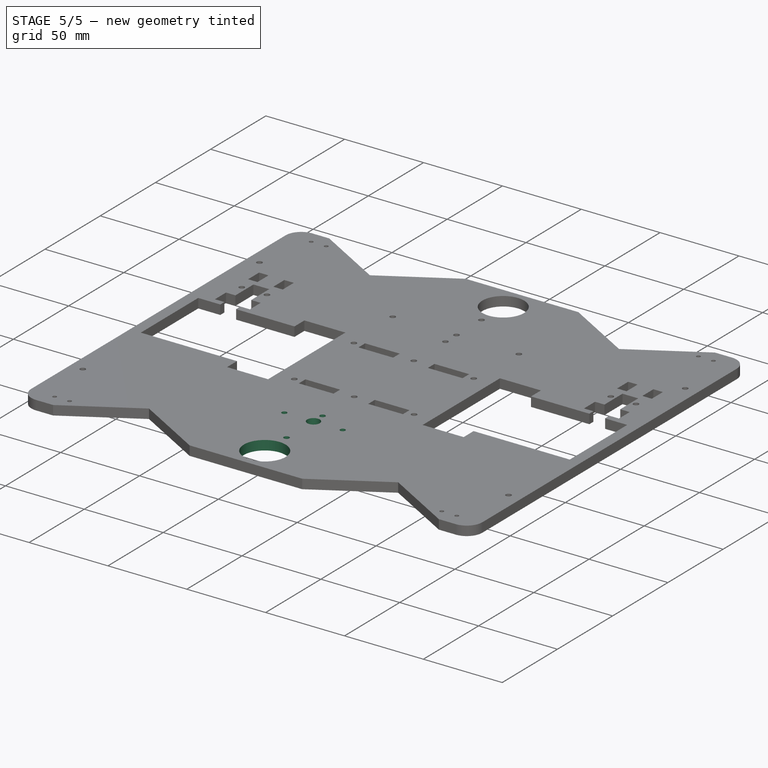
[diagram: stage 5 of 5 — iso view after this stage's code; geometry added in this stage tinted green]
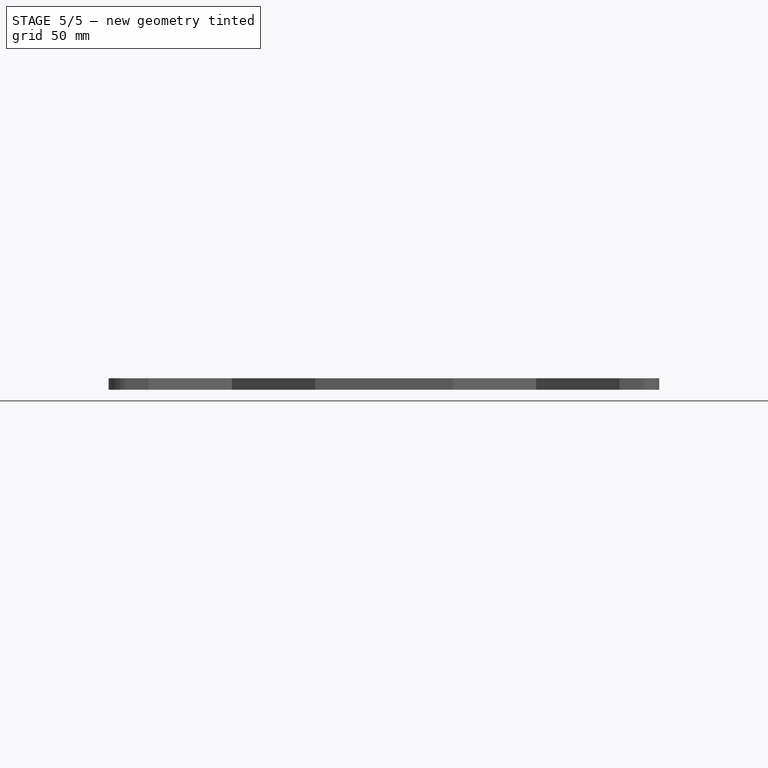
[diagram: stage 5 of 5 — front view after this stage's code; geometry added in this stage tinted green]
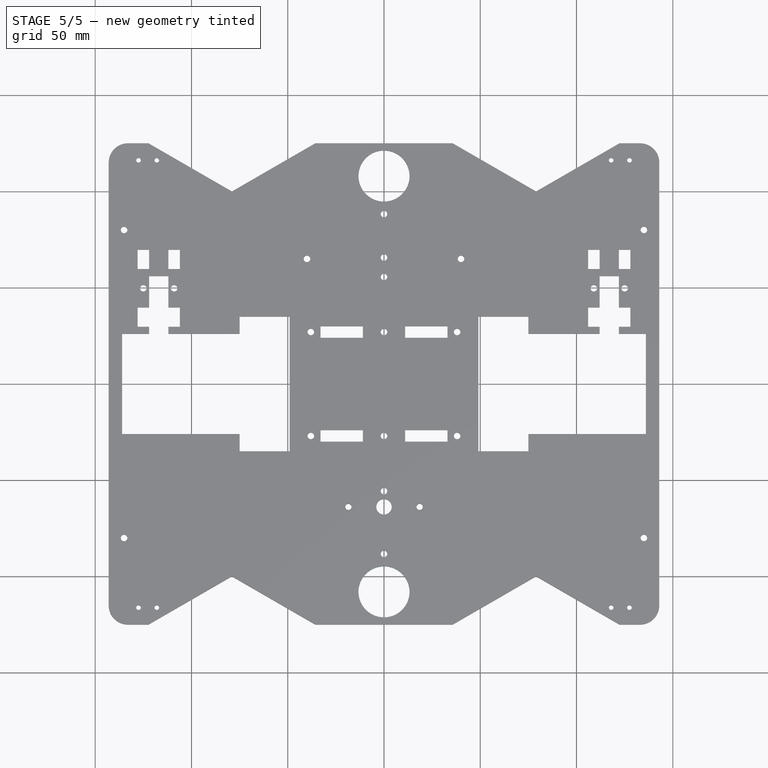
[diagram: stage 5 of 5 — top view after this stage's code; geometry added in this stage tinted green]
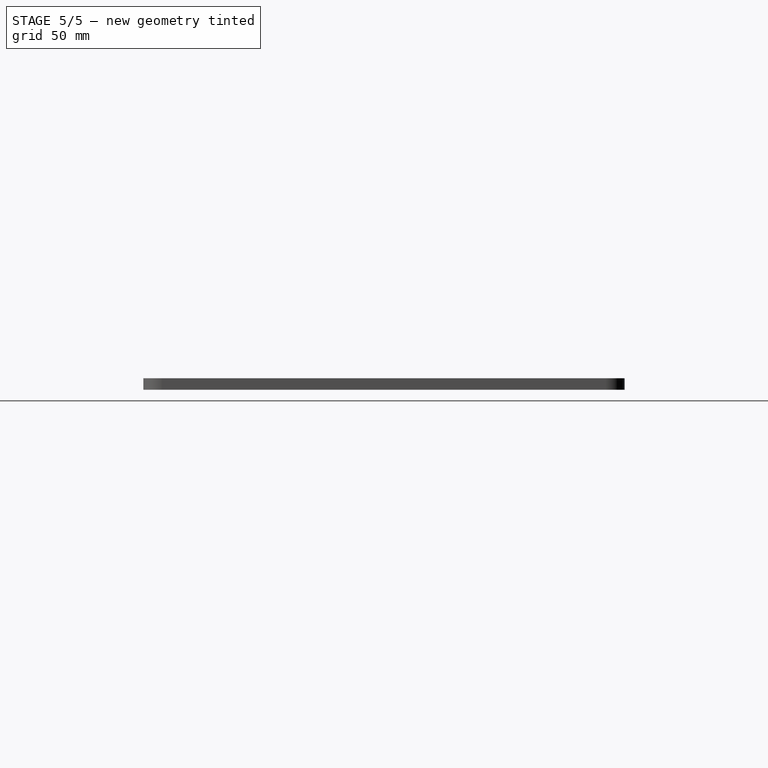
[diagram: stage 5 of 5 — right view after this stage's code; geometry added in this stage tinted green]
FEATURE [PartDesign::Mirrored] Mirrored006  label="Trous_Echantillons_Full"
  BaseFeature = -> Pocket006
  MirrorPlane = -> Sketch008 [H_Axis]
  Originals = -> [Pocket006]
FEATURE [Sketcher::SketchObject] Sketch009
  ExternalGeometry = -> [Mirrored006]
  FullyConstrained = true
  MapMode = 5
  Placement = pos=(0,0,6) rot=(0,0,1;0rad)
  Support = -> [Mirrored006]
  sketch-geometry (4):
    g0: GeomPoint X=0 Y=-63.85 Z=0
    g1: Circle CenterX=0 CenterY=-63.85 CenterZ=0 NormalX=0 NormalY=0 NormalZ=1 AngleXU=0 Radius=4
    g2: Circle CenterX=-18.5 CenterY=-63.85 CenterZ=0 NormalX=0 NormalY=0 NormalZ=1 AngleXU=0 Radius=1.6
    g3: Circle CenterX=18.5 CenterY=-63.85 CenterZ=0 NormalX=0 NormalY=0 NormalZ=1 AngleXU=0 Radius=1.6
  constraints (9):
    c: PointOnObject(g0,g-2)
    c: DistanceY(g-3,g0) = 61.15
    c: Coincident(g1,g0)
    c: Radius(g1) = 4
    c: Horizontal(g2,g1)
    c: DistanceX(g2,g3) = 37
    c: Radius(g2) = 1.6
    c: Equal(g2,g3)
    c: Symmetric(g2,g3,g1)
FEATURE [PartDesign::Pocket] Pocket007
  BaseFeature = -> Mirrored006
  Length = 5
  Length2 = 100
  Profile = -> Sketch009
  Type = 1
FEATURE [PartDesign::Mirrored] Mirrored007  label="Support_Bille_Full"
  BaseFeature = -> Pocket007
  MirrorPlane = -> Sketch004 [H_Axis]
  Originals = -> [Pocket003]
FEATURE [PartDesign::Body] Body
  Group = -> [Sketch,Pad,Sketch001,Pocket,Mirrored,Sketch002,Pocket001,Mirrored001,Sketch003,Pocket002,Sketch004,Pocket003,Sketch005,Pocket004,Sketch006,Pocket005,Mirrored004,Sketch007,Hole,Mirrored005,Sketch008,Pocket006,Mirrored006,Sketch009,Pocket007,Mirrored007]
  Origin = -> Origin
  Tip = -> Mirrored007
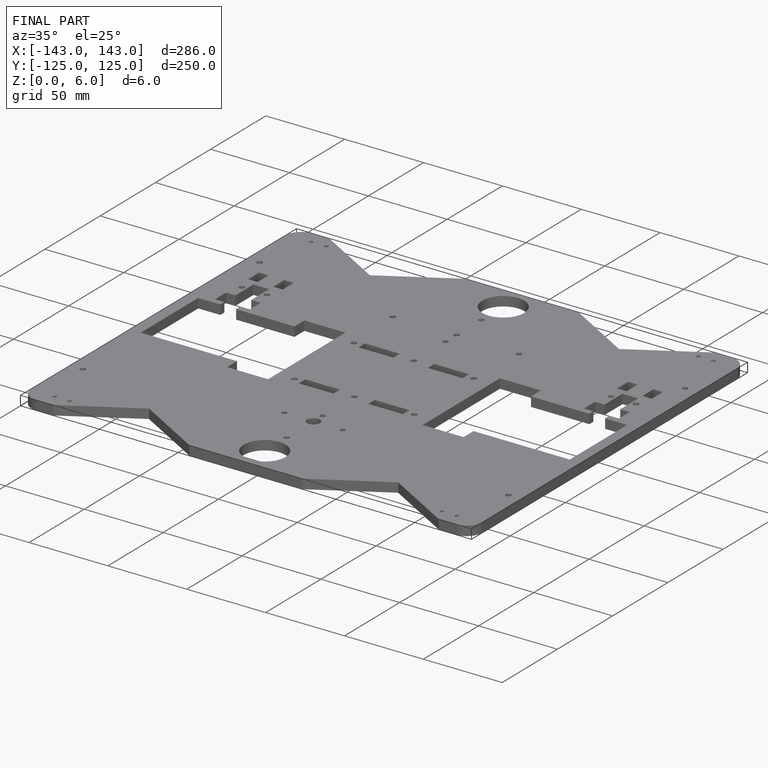
[diagram: finished part — iso view with bounding-box wireframe]
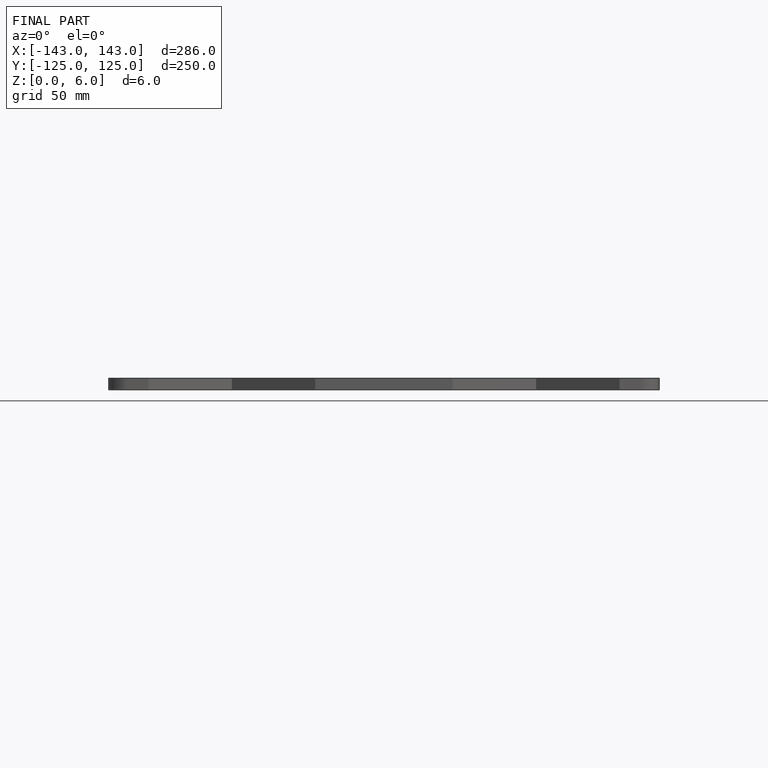
[diagram: finished part — front view with bounding-box wireframe]
